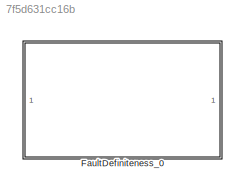
MODEL slx_7f5d631cc16b
KIND library
CONFIG AbsTol = auto
CONFIG EnableMultiTasking = off
CONFIG FixedStep = auto
CONFIG MaxStep = auto
CONFIG MinStep = auto
CONFIG RelTol = 1e-3
CONFIG SampleTimeConstraint = Unconstrained
CONFIG SolverName = VariableStepAuto
CONFIG StartTime = 0.0
CONFIG StopTime = 10.0
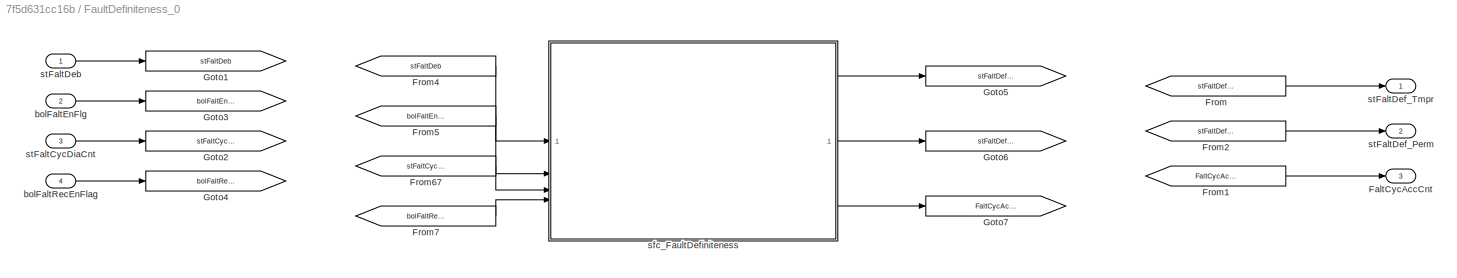
BLOCK [SubSystem] FaultDefiniteness_0
  TreatAsAtomicUnit = on
BLOCK [Outport] FaultDefiniteness_0/FaltCycAccCnt
  Port = 3
BLOCK [From] FaultDefiniteness_0/From
  GotoTag = stFaltDef_Tmpr
BLOCK [From] FaultDefiniteness_0/From1
  GotoTag = FaltCycAccCnt
BLOCK [From] FaultDefiniteness_0/From2
  GotoTag = stFaltDef_Perm
BLOCK [From] FaultDefiniteness_0/From4
  GotoTag = stFaltDeb
BLOCK [From] FaultDefiniteness_0/From5
  GotoTag = bolFaltEnFlg
BLOCK [From] FaultDefiniteness_0/From67
  GotoTag = stFaltCycDiaCnt
BLOCK [From] FaultDefiniteness_0/From7
  GotoTag = bolFaltRecEnFlag
BLOCK [Goto] FaultDefiniteness_0/Goto1
  GotoTag = stFaltDeb
BLOCK [Goto] FaultDefiniteness_0/Goto2
  GotoTag = stFaltCycDiaCnt
BLOCK [Goto] FaultDefiniteness_0/Goto3
  GotoTag = bolFaltEnFlg
BLOCK [Goto] FaultDefiniteness_0/Goto4
  GotoTag = bolFaltRecEnFlag
BLOCK [Goto] FaultDefiniteness_0/Goto5
  GotoTag = stFaltDef_Tmpr
BLOCK [Goto] FaultDefiniteness_0/Goto6
  GotoTag = stFaltDef_Perm
BLOCK [Goto] FaultDefiniteness_0/Goto7
  GotoTag = FaltCycAccCnt
BLOCK [Inport] FaultDefiniteness_0/bolFaltEnFlg
  Port = 2
BLOCK [Inport] FaultDefiniteness_0/bolFaltRecEnFlag
  Port = 4
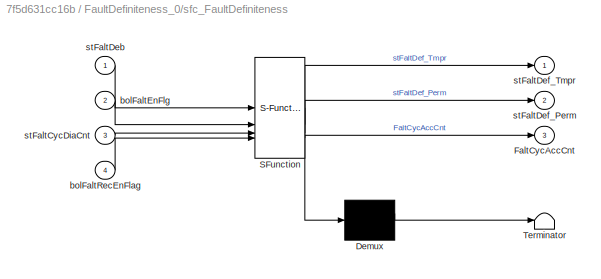
BLOCK [SubSystem] FaultDefiniteness_0/sfc_FaultDefiniteness
  ErrorFcn = Stateflow.Translate.translate
  PermitHierarchicalResolution = ExplicitOnly
  SFBlockType = Chart
  TreatAsAtomicUnit = on
BLOCK [Demux] FaultDefiniteness_0/sfc_FaultDefiniteness/ Demux 
  Outputs = 1
BLOCK [S-Function] FaultDefiniteness_0/sfc_FaultDefiniteness/ SFunction 
  EnableBusSupport = off
  FunctionName = sf_sfun
  Parameters = lb_FaltWaitRecvCnt
  PortCounts = [4 4]
  SFcnIsStateOwnerBlock = off
  SFunctionDeploymentMode = off
  Tag = Stateflow S-Function 2
BLOCK [Terminator] FaultDefiniteness_0/sfc_FaultDefiniteness/ Terminator 
BLOCK [Outport] FaultDefiniteness_0/sfc_FaultDefiniteness/FaltCycAccCnt
  Port = 3
BLOCK [Inport] FaultDefiniteness_0/sfc_FaultDefiniteness/bolFaltEnFlg
  Port = 2
BLOCK [Inport] FaultDefiniteness_0/sfc_FaultDefiniteness/bolFaltRecEnFlag
  Port = 4
BLOCK [Inport] FaultDefiniteness_0/sfc_FaultDefiniteness/stFaltCycDiaCnt
  Port = 3
BLOCK [Inport] FaultDefiniteness_0/sfc_FaultDefiniteness/stFaltDeb
BLOCK [Outport] FaultDefiniteness_0/sfc_FaultDefiniteness/stFaltDef_Perm
  Port = 2
BLOCK [Outport] FaultDefiniteness_0/sfc_FaultDefiniteness/stFaltDef_Tmpr
BLOCK [Inport] FaultDefiniteness_0/stFaltCycDiaCnt
  Port = 3
BLOCK [Inport] FaultDefiniteness_0/stFaltDeb
BLOCK [Outport] FaultDefiniteness_0/stFaltDef_Perm
  Port = 2
BLOCK [Outport] FaultDefiniteness_0/stFaltDef_Tmpr
LINE FaultDefiniteness_0/From1:1 -> FaultDefiniteness_0/FaltCycAccCnt:1
LINE FaultDefiniteness_0/From2:1 -> FaultDefiniteness_0/stFaltDef_Perm:1
LINE FaultDefiniteness_0/From4:1 -> FaultDefiniteness_0/sfc_FaultDefiniteness:1
LINE FaultDefiniteness_0/From5:1 -> FaultDefiniteness_0/sfc_FaultDefiniteness:2
LINE FaultDefiniteness_0/From67:1 -> FaultDefiniteness_0/sfc_FaultDefiniteness:3
LINE FaultDefiniteness_0/From7:1 -> FaultDefiniteness_0/sfc_FaultDefiniteness:4
LINE FaultDefiniteness_0/From:1 -> FaultDefiniteness_0/stFaltDef_Tmpr:1
LINE FaultDefiniteness_0/bolFaltEnFlg:1 -> FaultDefiniteness_0/Goto3:1
LINE FaultDefiniteness_0/bolFaltRecEnFlag:1 -> FaultDefiniteness_0/Goto4:1
LINE FaultDefiniteness_0/sfc_FaultDefiniteness:1 -> FaultDefiniteness_0/Goto5:1
LINE FaultDefiniteness_0/sfc_FaultDefiniteness:2 -> FaultDefiniteness_0/Goto6:1
LINE FaultDefiniteness_0/sfc_FaultDefiniteness:3 -> FaultDefiniteness_0/Goto7:1
LINE FaultDefiniteness_0/stFaltCycDiaCnt:1 -> FaultDefiniteness_0/Goto2:1
LINE FaultDefiniteness_0/stFaltDeb:1 -> FaultDefiniteness_0/Goto1:1
CHART FaultDefiniteness_0/sfc_FaultDefiniteness states=6 transitions=16
  STATE_LABEL 'EnableDiagnosis'
  STATE_LABEL 'Normal\n/*Clear Bit0 Bit1*/\nen:  stFaltDef_Tmpr = false;\n       stFaltDef_Perm = false;\n       FaltCycAccCnt = uint8(0);'
  STATE_LABEL 'Confirming\n/*Set Bit0 Bit1*/\nen:  stFaltDef_Tmpr = true;\n       stFaltDef_Perm = true;\n       FaltCycAccCnt = FaltCycAccCnt + uint8(1);\n'
  STATE_LABEL 'Wait\n/*Set Bit0 Clear Bit1*/\nen:  stFaltDef_Tmpr = true;\n       stFaltDef_Perm = false;\n      FaltWaitRecvCnt = uint16(0);\ndu: \n   FaltWaitRecvCnt = FaltWaitRecvCnt + uint16(1);\nex: FaltWaitRecvCnt = uint16(0);'
  STATE_LABEL 'Confirmed\n/*Set Bit1 Clear Bit0*/\nen:  stFaltDef_Tmpr = false;\n       stFaltDef_Perm = true;\n       FaltCycAccCnt = uint8(0);'
  STATE_LABEL '/*There is Fault*/\n[stFaltDeb]'
  STATE_LABEL '/*Direct Confirm*/\n[stFaltCycDiaCnt == uint8(0)]'
  STATE_LABEL '/*Confirm to Recovery*/\n[FaltWaitRecvCnt > uint16(uint16(2*lb_FaltWaitRecvCnt) + uint16(100)) &&...\n!stFaltDeb && bolFaltEnFlg]'
  STATE_LABEL '/*There is no Fault*/\n[!stFaltDeb]'
  STATE_LABEL '/*There is Fault*/\n[stFaltDeb]'
  STATE_LABEL '/*Need Confirm*/'
  STATE_LABEL '/*Fault is Confirmed*/\n[FaltCycAccCnt >= stFaltCycDiaCnt]'
  STATE_LABEL '/*Need Recovery*/\n[bolFaltRecEnFlag &&...\n!stFaltDeb]'
  STATE_LABEL 'Normal\n/*Clear Bit0 Bit1*/\nen:  stFaltDef_Tmpr = false;\n       stFaltDef_Perm = false;\n       FaltCycAccCnt = uint8(0);'
  STATE_LABEL 'Confirming\n/*Set Bit0 Bit1*/\nen:  stFaltDef_Tmpr = true;\n       stFaltDef_Perm = true;\n       FaltCycAccCnt = FaltCycAccCnt + uint8(1);\n'
  STATE_LABEL 'Wait\n/*Set Bit0 Clear Bit1*/\nen:  stFaltDef_Tmpr = true;\n       stFaltDef_Perm = false;\n      FaltWaitRecvCnt = uint16(0);\ndu: \n   FaltWaitRecvCnt = FaltWaitRecvCnt + uint16(1);\nex: FaltWaitRecvCnt = uint16(0);'
  STATE_LABEL 'Confirmed\n/*Set Bit1 Clear Bit0*/\nen:  stFaltDef_Tmpr = false;\n       stFaltDef_Perm = true;\n       FaltCycAccCnt = uint8(0);'
  STATE_LABEL 'DisableDiagnosis\n/*Clear Bit0 Bit1*/\nen:  stFaltDef_Tmpr = false;\n       stFaltDef_Perm = false;\n       FaltCycAccCnt = uint8(0);'
CHART  states=0 transitions=0
